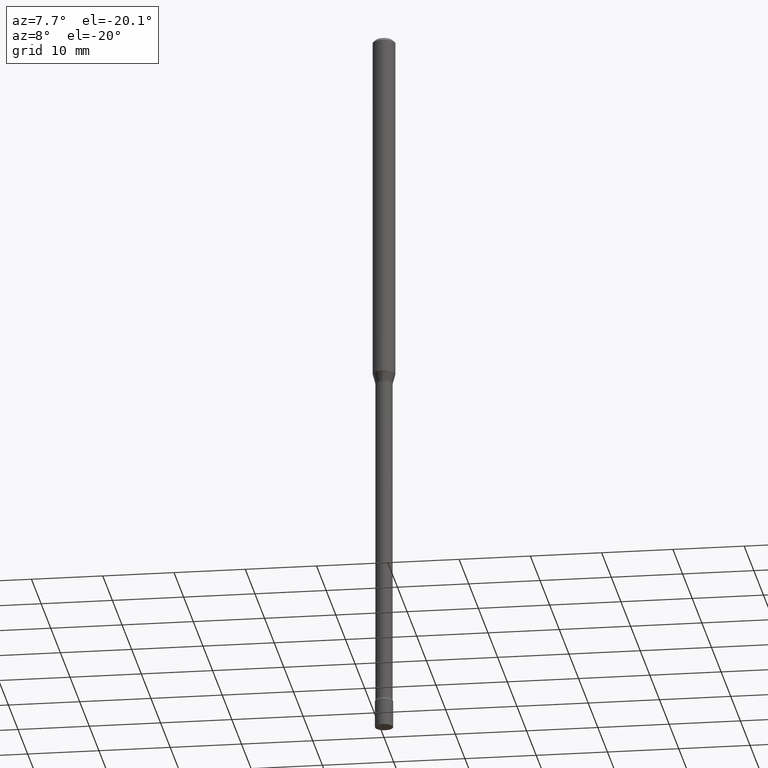
[diagram: clean part render]
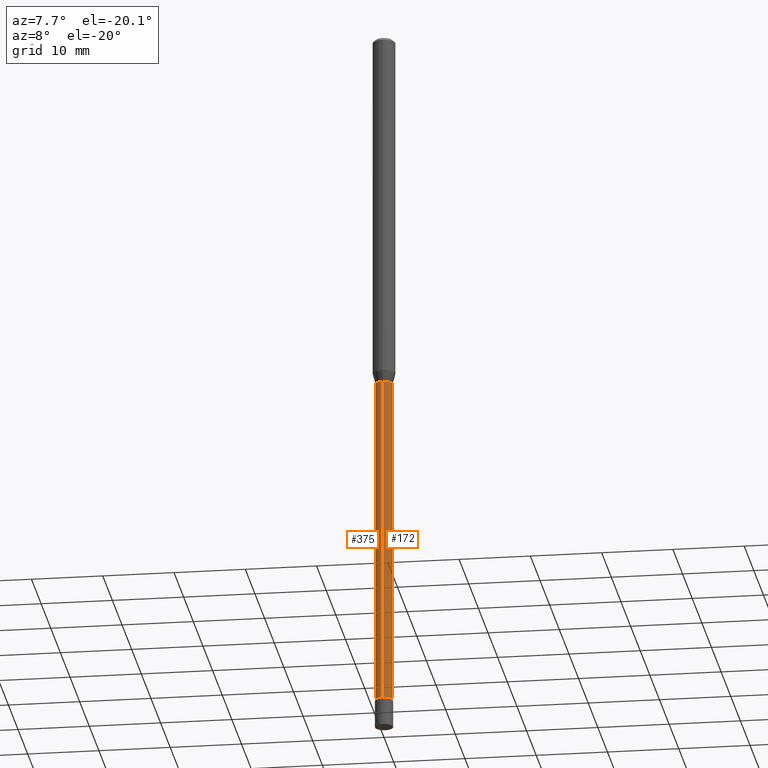
[diagram: same view with one multi-face feature highlighted, each face labeled with its STEP entity id]
A machine part, auxiliary view. The highlighted faces form ONE feature: a constant-radius fillet chain: 2 tangent blend faces with common blend radius 1.1938 mm. The faces share edges in the B-rep.
Their STEP definitions:
[1] entity #172 (Cylinder):
#13 = ORIENTED_EDGE ( 'NONE', *, *, #423, .F. ) ;
#16 = DIRECTION ( 'NONE',  ( -2.445449410952095360E-29, 3.491509113920768834E-15, 1.000000000000000000 ) ) ;
#27 = EDGE_CURVE ( 'NONE', #34, #225, #196, .T. ) ;
#29 = EDGE_CURVE ( 'NONE', #225, #491, #453, .T. ) ;
#32 = CARTESIAN_POINT ( 'NONE',  ( -3.281992458512551448E-16, -0.04700000000000009726, 1.641009283542764807E-16 ) ) ;
#34 = VERTEX_POINT ( 'NONE', #174 ) ;
#41 = ORIENTED_EDGE ( 'NONE', *, *, #212, .F. ) ;
#93 = VECTOR ( 'NONE', #511, 39.37007874015748143 ) ;
#99 = DIRECTION ( 'NONE',  ( -6.982962677686265133E-15, -1.000000000000000000, 0.000000000000000000 ) ) ;
#110 = AXIS2_PLACEMENT_3D ( 'NONE', #145, #352, #436 ) ;
#112 = CIRCLE ( 'NONE', #292, 0.04700000000000000705 ) ;
#145 = CARTESIAN_POINT ( 'NONE',  ( 0.000000000000000000, 0.000000000000000000, 0.000000000000000000 ) ) ;
#172 = ADVANCED_FACE ( 'NONE', ( #273 ), #471, .T. ) ;
#174 = CARTESIAN_POINT ( 'NONE',  ( -3.281992458511619113E-16, -0.04700000000001360034, -3.841000000000000192 ) ) ;
#186 = DIRECTION ( 'NONE',  ( -2.445449410952095360E-29, 3.491509113920768834E-15, 1.000000000000000000 ) ) ;
#195 = ORIENTED_EDGE ( 'NONE', *, *, #29, .T. ) ;
#196 = CIRCLE ( 'NONE', #266, 0.04700000000000019440 ) ;
#212 = EDGE_CURVE ( 'NONE', #34, #247, #356, .T. ) ;
#219 = EDGE_LOOP ( 'NONE', ( #384, #195, #13, #41 ) ) ;
#220 = CARTESIAN_POINT ( 'NONE',  ( 9.392971187466999511E-29, -1.341088650656967574E-14, -3.841000000000000192 ) ) ;
#225 = VERTEX_POINT ( 'NONE', #439 ) ;
#247 = VERTEX_POINT ( 'NONE', #289 ) ;
#262 = CARTESIAN_POINT ( 'NONE',  ( 4.895728064744323298E-29, -6.989913216269490418E-15, -2.001974787463811190 ) ) ;
#266 = AXIS2_PLACEMENT_3D ( 'NONE', #220, #297, #99 ) ;
#267 = DIRECTION ( 'NONE',  ( -6.982962677686265922E-15, -1.000000000000000000, 5.812442539711197800E-15 ) ) ;
#273 = FACE_OUTER_BOUND ( 'NONE', #219, .T. ) ;
#289 = CARTESIAN_POINT ( 'NONE',  ( -3.281992458512055945E-16, -0.04700000000000699452, -2.001974787463811190 ) ) ;
#292 = AXIS2_PLACEMENT_3D ( 'NONE', #262, #186, #267 ) ;
#297 = DIRECTION ( 'NONE',  ( -2.445449410952095360E-29, 3.491509113920768834E-15, 1.000000000000000000 ) ) ;
#307 = VECTOR ( 'NONE', #16, 39.37007874015748143 ) ;
#352 = DIRECTION ( 'NONE',  ( -2.445449410952095360E-29, 3.491509113920768834E-15, 1.000000000000000000 ) ) ;
#356 = LINE ( 'NONE', #32, #93 ) ;
#382 = CARTESIAN_POINT ( 'NONE',  ( 3.339550858072477291E-16, 0.04700000000000009726, -1.641009283542764807E-16 ) ) ;
#384 = ORIENTED_EDGE ( 'NONE', *, *, #27, .T. ) ;
#423 = EDGE_CURVE ( 'NONE', #247, #491, #112, .T. ) ;
#436 = DIRECTION ( 'NONE',  ( -6.982962677686265133E-15, -1.000000000000000000, 3.491509113920768834E-15 ) ) ;
#439 = CARTESIAN_POINT ( 'NONE',  ( 3.446132268437433623E-16, 0.04699999999998678152, -3.841000000000000192 ) ) ;
#453 = LINE ( 'NONE', #382, #307 ) ;
#471 = CYLINDRICAL_SURFACE ( 'NONE', #110, 0.04700000000000009726 ) ;
#474 = CARTESIAN_POINT ( 'NONE',  ( 3.339550858073416035E-16, 0.04699999999999300571, -2.001974787463811634 ) ) ;
#491 = VERTEX_POINT ( 'NONE', #474 ) ;
#511 = DIRECTION ( 'NONE',  ( -2.445449410952095360E-29, 3.491509113920768834E-15, 1.000000000000000000 ) ) ;
[2] entity #375 (Cylinder):
#16 = DIRECTION ( 'NONE',  ( -2.445449410952095360E-29, 3.491509113920768834E-15, 1.000000000000000000 ) ) ;
#29 = EDGE_CURVE ( 'NONE', #225, #491, #453, .T. ) ;
#32 = CARTESIAN_POINT ( 'NONE',  ( -3.281992458512551448E-16, -0.04700000000000009726, 1.641009283542764807E-16 ) ) ;
#34 = VERTEX_POINT ( 'NONE', #174 ) ;
#37 = AXIS2_PLACEMENT_3D ( 'NONE', #438, #40, #155 ) ;
#40 = DIRECTION ( 'NONE',  ( -2.445449410952095360E-29, 3.491509113920768834E-15, 1.000000000000000000 ) ) ;
#55 = CARTESIAN_POINT ( 'NONE',  ( 0.000000000000000000, 0.000000000000000000, 0.000000000000000000 ) ) ;
#61 = DIRECTION ( 'NONE',  ( -2.445449410952095360E-29, 3.491509113920768834E-15, 1.000000000000000000 ) ) ;
#63 = DIRECTION ( 'NONE',  ( -2.445449410952095360E-29, 3.491509113920768834E-15, 1.000000000000000000 ) ) ;
#68 = AXIS2_PLACEMENT_3D ( 'NONE', #465, #63, #306 ) ;
#93 = VECTOR ( 'NONE', #511, 39.37007874015748143 ) ;
#155 = DIRECTION ( 'NONE',  ( -6.982962677686265922E-15, -1.000000000000000000, 5.812442539711197800E-15 ) ) ;
#174 = CARTESIAN_POINT ( 'NONE',  ( -3.281992458511619113E-16, -0.04700000000001360034, -3.841000000000000192 ) ) ;
#178 = CIRCLE ( 'NONE', #68, 0.04700000000000019440 ) ;
#189 = EDGE_CURVE ( 'NONE', #225, #34, #178, .T. ) ;
#191 = CYLINDRICAL_SURFACE ( 'NONE', #284, 0.04700000000000009726 ) ;
#212 = EDGE_CURVE ( 'NONE', #34, #247, #356, .T. ) ;
#225 = VERTEX_POINT ( 'NONE', #439 ) ;
#246 = ORIENTED_EDGE ( 'NONE', *, *, #189, .T. ) ;
#247 = VERTEX_POINT ( 'NONE', #289 ) ;
#279 = EDGE_CURVE ( 'NONE', #491, #247, #393, .T. ) ;
#284 = AXIS2_PLACEMENT_3D ( 'NONE', #55, #61, #510 ) ;
#289 = CARTESIAN_POINT ( 'NONE',  ( -3.281992458512055945E-16, -0.04700000000000699452, -2.001974787463811190 ) ) ;
#306 = DIRECTION ( 'NONE',  ( -6.982962677686265133E-15, -1.000000000000000000, 0.000000000000000000 ) ) ;
#307 = VECTOR ( 'NONE', #16, 39.37007874015748143 ) ;
#344 = EDGE_LOOP ( 'NONE', ( #479, #246, #411, #347 ) ) ;
#347 = ORIENTED_EDGE ( 'NONE', *, *, #279, .F. ) ;
#355 = FACE_OUTER_BOUND ( 'NONE', #344, .T. ) ;
#356 = LINE ( 'NONE', #32, #93 ) ;
#375 = ADVANCED_FACE ( 'NONE', ( #355 ), #191, .T. ) ;
#382 = CARTESIAN_POINT ( 'NONE',  ( 3.339550858072477291E-16, 0.04700000000000009726, -1.641009283542764807E-16 ) ) ;
#393 = CIRCLE ( 'NONE', #37, 0.04700000000000000705 ) ;
#411 = ORIENTED_EDGE ( 'NONE', *, *, #212, .T. ) ;
#438 = CARTESIAN_POINT ( 'NONE',  ( 4.895728064744323298E-29, -6.989913216269490418E-15, -2.001974787463811190 ) ) ;
#439 = CARTESIAN_POINT ( 'NONE',  ( 3.446132268437433623E-16, 0.04699999999998678152, -3.841000000000000192 ) ) ;
#453 = LINE ( 'NONE', #382, #307 ) ;
#465 = CARTESIAN_POINT ( 'NONE',  ( 9.392971187466999511E-29, -1.341088650656967574E-14, -3.841000000000000192 ) ) ;
#474 = CARTESIAN_POINT ( 'NONE',  ( 3.339550858073416035E-16, 0.04699999999999300571, -2.001974787463811634 ) ) ;
#479 = ORIENTED_EDGE ( 'NONE', *, *, #29, .F. ) ;
#491 = VERTEX_POINT ( 'NONE', #474 ) ;
#510 = DIRECTION ( 'NONE',  ( -6.982962677686265133E-15, -1.000000000000000000, 3.491509113920768834E-15 ) ) ;
#511 = DIRECTION ( 'NONE',  ( -2.445449410952095360E-29, 3.491509113920768834E-15, 1.000000000000000000 ) ) ;